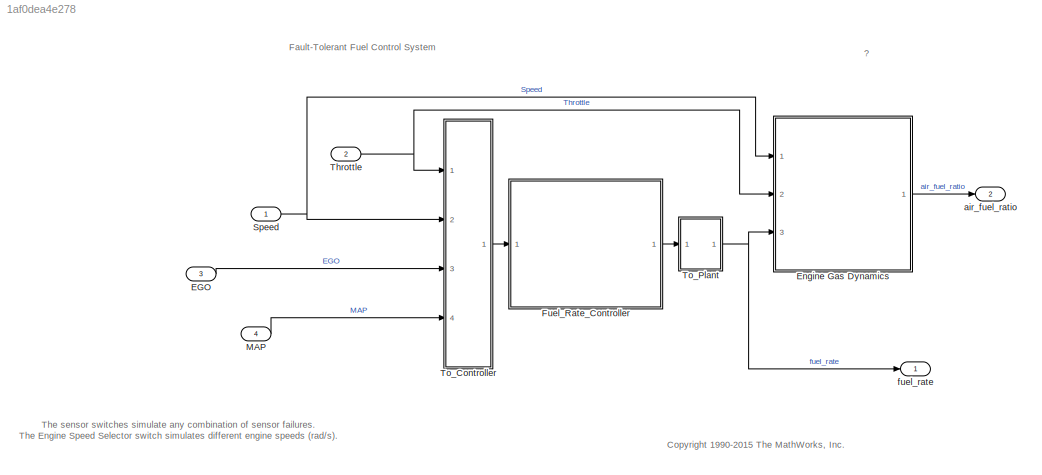
MODEL slx_1af0dea4e278
KIND model
CONFIG AbsTol = 1e-6
CONFIG EnableMultiTasking = off
CONFIG FixedStep = 0.001
CONFIG MaxStep = auto
CONFIG MinStep = auto
CONFIG RelTol = 1e-5
CONFIG SampleTimeConstraint = Unconstrained
CONFIG Solver = ode45
CONFIG SolverName = ode45
CONFIG StartTime = 0.0
CONFIG StopTime = tspan(end)
BLOCK [Inport] EGO
  IconDisplay = Port number
  Port = 3
BLOCK [ModelReference] Engine Gas Dynamics
  ModelNameDialog = sldemo_fuelsys_dd_plant.slx
  ModelReferenceVersion = 1.553
  Ports = [3, 1]
  Variant = off
BLOCK [ModelReference] Fuel_Rate_Controller
  ModelNameDialog = sldemo_fuelsys_dd_controller.slx
  ModelReferenceVersion = 1.559
  Ports = [1, 1]
  Variant = off
BLOCK [Inport] MAP
  IconDisplay = Port number
  Port = 4
BLOCK [Inport] Speed
  IconDisplay = Port number
BLOCK [Inport] Throttle
  IconDisplay = Port number
  Port = 2
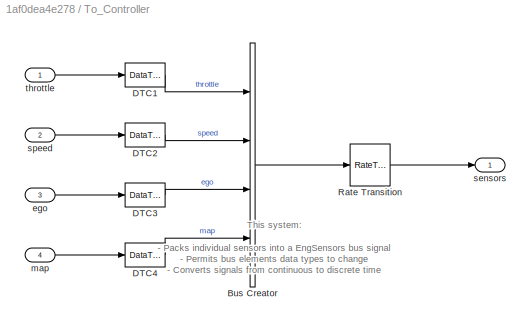
BLOCK [SubSystem] To_Controller
  Ports = [4, 1]
  RequestExecContextInheritance = off
  Variant = off
BLOCK [BusCreator] To_Controller/Bus Creator
  DisplayOption = bar
  InheritFromInputs = on
  Inputs = 4
  NonVirtualBus = on
  OutDataTypeStr = Bus: EngSensors
  Ports = [4, 1]
BLOCK [DataTypeConversion] To_Controller/DTC1
  RndMeth = Floor
  SampleTime = [0 1]
  SaturateOnIntegerOverflow = off
BLOCK [DataTypeConversion] To_Controller/DTC2
  RndMeth = Floor
  SampleTime = [0 1]
  SaturateOnIntegerOverflow = off
BLOCK [DataTypeConversion] To_Controller/DTC3
  RndMeth = Floor
  SampleTime = [0 1]
  SaturateOnIntegerOverflow = off
BLOCK [DataTypeConversion] To_Controller/DTC4
  RndMeth = Floor
  SampleTime = [0 1]
  SaturateOnIntegerOverflow = off
BLOCK [RateTransition] To_Controller/Rate Transition
  OutPortSampleTime = 0.01
BLOCK [Inport] To_Controller/ego
  IconDisplay = Port number
  Port = 3
BLOCK [Inport] To_Controller/map
  IconDisplay = Port number
  Port = 4
BLOCK [Outport] To_Controller/sensors
  IconDisplay = Port number
BLOCK [Inport] To_Controller/speed
  IconDisplay = Port number
  Port = 2
BLOCK [Inport] To_Controller/throttle
  IconDisplay = Port number
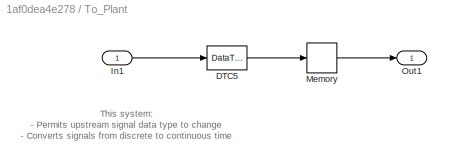
BLOCK [SubSystem] To_Plant
  Ports = [1, 1]
  RequestExecContextInheritance = off
  Variant = off
BLOCK [DataTypeConversion] To_Plant/DTC5
  RndMeth = Floor
  SaturateOnIntegerOverflow = off
BLOCK [Inport] To_Plant/In1
  IconDisplay = Port number
BLOCK [Memory] To_Plant/Memory
BLOCK [Outport] To_Plant/Out1
  IconDisplay = Port number
BLOCK [Outport] air_fuel_ratio
  IconDisplay = Port number
  Port = 2
BLOCK [Outport] fuel_rate
  IconDisplay = Port number
ANNOTATION (root): ?
ANNOTATION (root): <copyright redacted>
ANNOTATION (root): Fault-Tolerant Fuel Control System
ANNOTATION (root): The sensor switches simulate any combination of sensor failures. The Engine Speed Selector switch simulates different engine speeds (rad/s).
ANNOTATION To_Controller: This system: - Packs individual sensors into a EngSensors bus signal - Permits bus elements data types to change - Converts signals from continuous to discrete time
ANNOTATION To_Plant: This system: - Permits upstream signal data type to change - Converts signals from discrete to continuous time
LINE EGO:1 -> To_Controller:3
LINE Engine Gas Dynamics:1 -> air_fuel_ratio:1
LINE Fuel_Rate_Controller:1 -> To_Plant:1
LINE MAP:1 -> To_Controller:4
NET Speed:1 -> Engine Gas Dynamics:1, To_Controller:2
NET Throttle:1 -> Engine Gas Dynamics:2, To_Controller:1
LINE To_Controller/Bus Creator:1 -> To_Controller/Rate Transition:1
LINE To_Controller/DTC1:1 -> To_Controller/Bus Creator:1
LINE To_Controller/DTC2:1 -> To_Controller/Bus Creator:2
LINE To_Controller/DTC3:1 -> To_Controller/Bus Creator:3
LINE To_Controller/DTC4:1 -> To_Controller/Bus Creator:4
LINE To_Controller/Rate Transition:1 -> To_Controller/sensors:1
LINE To_Controller/ego:1 -> To_Controller/DTC3:1
LINE To_Controller/map:1 -> To_Controller/DTC4:1
LINE To_Controller/speed:1 -> To_Controller/DTC2:1
LINE To_Controller/throttle:1 -> To_Controller/DTC1:1
LINE To_Controller:1 -> Fuel_Rate_Controller:1
LINE To_Plant/DTC5:1 -> To_Plant/Memory:1
LINE To_Plant/In1:1 -> To_Plant/DTC5:1
LINE To_Plant/Memory:1 -> To_Plant/Out1:1
NET To_Plant:1 -> Engine Gas Dynamics:3, fuel_rate:1
note: NET lines group one-source signal fan-out (src -> all destinations, sorted); 1:1 wires keep LINE
